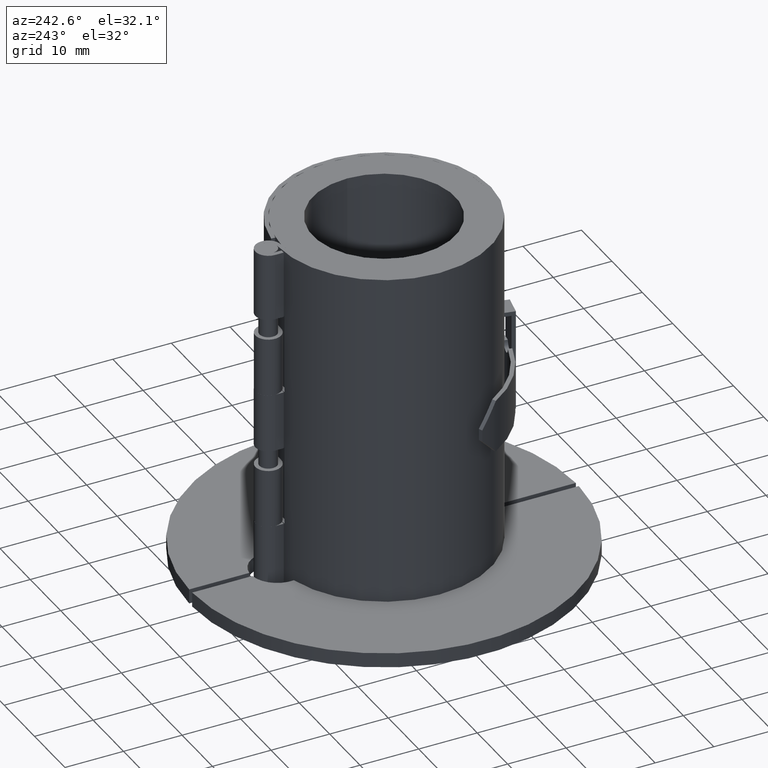
[diagram: clean part render]
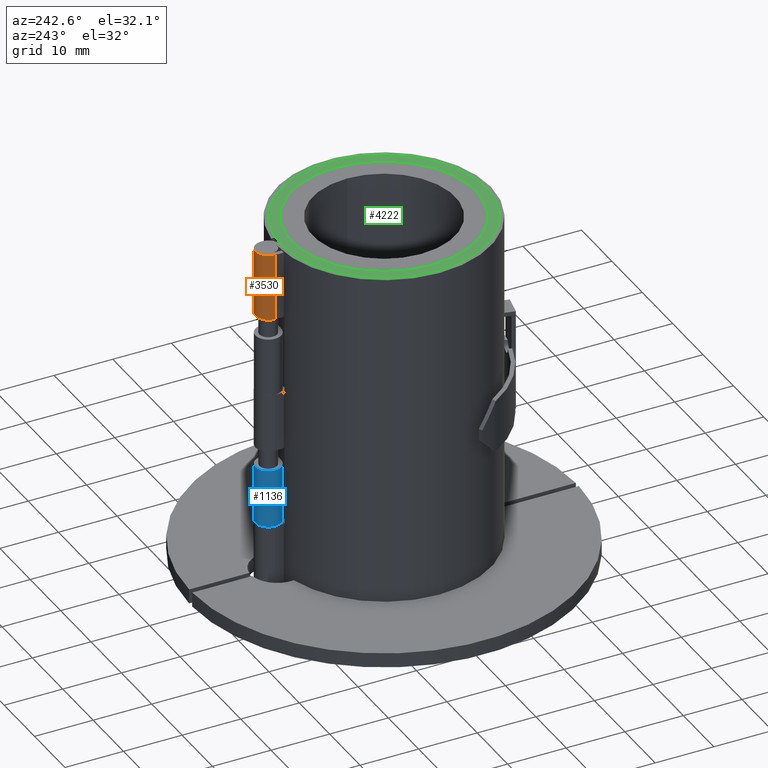
[diagram: same view with three faces highlighted in distinct colors, each labeled with its STEP entity id]
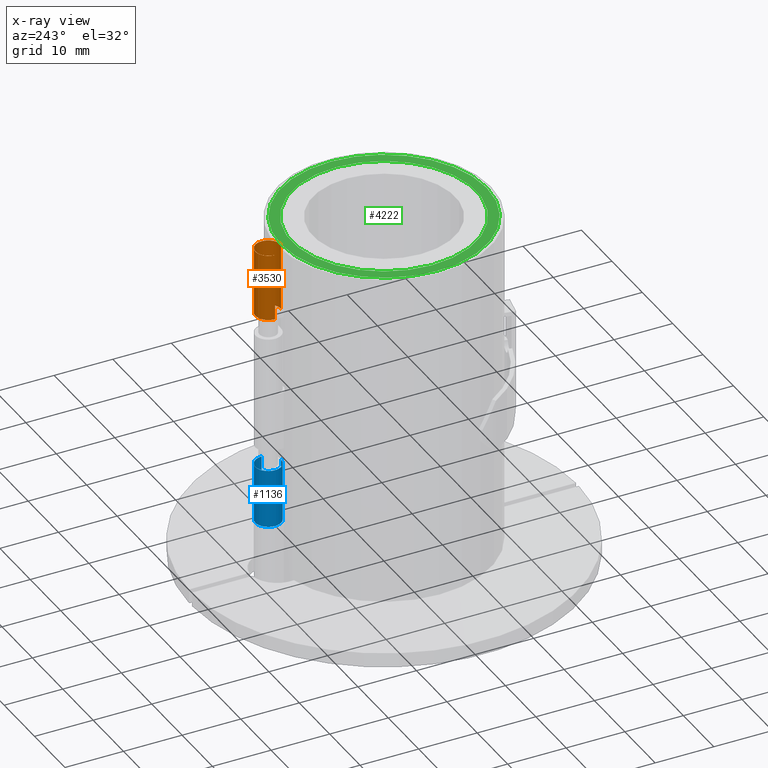
[diagram: x-ray of the same camera — body ghosted, the three highlighted faces saturated]
A machine part, auxiliary view with three faces highlighted in distinct colors.
The next image is the same camera in x-ray (body ghosted, the three faces saturated) — at least one of them is partly hidden behind the body in this view.
Their STEP definitions:

[orange] entity #3530 — the highlighted cylindrical surface (edge-blend (fillet) strip) has radius 2.2 mm, axis along (0, -0, -1).
#3063=CARTESIAN_POINT('',(9.229562E-014,17.549999999999947,48.500000000000121));
#3064=VERTEX_POINT('',#3063);
#3072=CARTESIAN_POINT('',(9.229562E-014,17.549999999999947,60.000000000000114));
#3073=VERTEX_POINT('',#3072);
#3074=CARTESIAN_POINT('',(9.229562E-014,17.549999999999947,48.500000000000114));
#3075=DIRECTION('',(0.0,0.0,1.0));
#3076=VECTOR('',#3075,11.5);
#3077=LINE('',#3074,#3076);
#3078=EDGE_CURVE('',#3064,#3073,#3077,.T.);
#3335=CARTESIAN_POINT('',(-2.199999999999906,19.74999999999995,48.500000000000121));
#3336=VERTEX_POINT('',#3335);
#3343=CARTESIAN_POINT('',(9.432732E-014,19.74999999999995,48.500000000000121));
#3344=DIRECTION('',(0.0,0.0,1.0));
#3345=DIRECTION('',(-1.0,0.0,0.0));
#3346=AXIS2_PLACEMENT_3D('',#3343,#3344,#3345);
#3347=CIRCLE('',#3346,2.200000000000005);
#3348=EDGE_CURVE('',#3064,#3336,#3347,.T.);
#3506=CARTESIAN_POINT('',(9.432732E-014,19.74999999999995,30.000000000000114));
#3507=DIRECTION('',(8.281969E-032,-6.409495E-031,-1.0));
#3508=DIRECTION('',(-1.0,0.0,0.0));
#3509=AXIS2_PLACEMENT_3D('',#3506,#3507,#3508);
#3510=CYLINDRICAL_SURFACE('',#3509,2.200000000000005);
#3511=ORIENTED_EDGE('',*,*,#3348,.T.);
#3512=CARTESIAN_POINT('',(-2.199999999999908,19.74999999999995,60.000000000000114));
#3513=VERTEX_POINT('',#3512);
#3514=CARTESIAN_POINT('',(-2.199999999999908,19.74999999999995,48.500000000000121));
#3515=DIRECTION('',(0.0,0.0,1.0));
#3516=VECTOR('',#3515,11.499999999999993);
#3517=LINE('',#3514,#3516);
#3518=EDGE_CURVE('',#3336,#3513,#3517,.T.);
#3519=ORIENTED_EDGE('',*,*,#3518,.T.);
#3520=CARTESIAN_POINT('',(9.432732E-014,19.74999999999995,60.000000000000114));
#3521=DIRECTION('',(0.0,0.0,-1.0));
#3522=DIRECTION('',(-1.0,0.0,0.0));
#3523=AXIS2_PLACEMENT_3D('',#3520,#3521,#3522);
#3524=CIRCLE('',#3523,2.200000000000002);
#3525=EDGE_CURVE('',#3513,#3073,#3524,.T.);
#3526=ORIENTED_EDGE('',*,*,#3525,.T.);
#3527=ORIENTED_EDGE('',*,*,#3078,.F.);
#3528=EDGE_LOOP('',(#3511,#3519,#3526,#3527));
#3529=FACE_OUTER_BOUND('',#3528,.T.);
#3530=ADVANCED_FACE('',(#3529),#3510,.T.);

[blue] entity #1136 — the highlighted cylindrical surface (edge-blend (fillet) strip) has radius 2.2 mm, axis along (0, 0, 1).
#611=CARTESIAN_POINT('',(-4.325174E-034,17.549999999999997,21.499999999999993));
#612=VERTEX_POINT('',#611);
#662=CARTESIAN_POINT('',(2.2,19.75,21.499999999999993));
#663=VERTEX_POINT('',#662);
#670=CARTESIAN_POINT('',(-1.665335E-015,19.75,21.499999999999993));
#671=DIRECTION('',(0.0,0.0,-1.0));
#672=DIRECTION('',(1.0,0.0,0.0));
#673=AXIS2_PLACEMENT_3D('',#670,#671,#672);
#674=CIRCLE('',#673,2.200000000000005);
#675=EDGE_CURVE('',#612,#663,#674,.T.);
#854=CARTESIAN_POINT('',(-9.413613E-034,17.549999999999997,11.499999999999996));
#855=VERTEX_POINT('',#854);
#863=CARTESIAN_POINT('',(2.2,19.75,11.499999999999996));
#864=VERTEX_POINT('',#863);
#865=CARTESIAN_POINT('',(-1.665335E-015,19.75,11.5));
#866=DIRECTION('',(0.0,0.0,1.0));
#867=DIRECTION('',(1.0,0.0,0.0));
#868=AXIS2_PLACEMENT_3D('',#865,#866,#867);
#869=CIRCLE('',#868,2.200000000000005);
#870=EDGE_CURVE('',#864,#855,#869,.T.);
#932=CARTESIAN_POINT('',(-4.325174E-034,17.549999999999997,21.499999999999993));
#933=DIRECTION('',(0.0,0.0,-1.0));
#934=VECTOR('',#933,9.999999999999996);
#935=LINE('',#932,#934);
#936=EDGE_CURVE('',#612,#855,#935,.T.);
#1120=CARTESIAN_POINT('',(-1.665335E-015,19.75,30.0));
#1121=DIRECTION('',(0.0,0.0,1.0));
#1122=DIRECTION('',(1.0,0.0,0.0));
#1123=AXIS2_PLACEMENT_3D('',#1120,#1121,#1122);
#1124=CYLINDRICAL_SURFACE('',#1123,2.200000000000005);
#1125=ORIENTED_EDGE('',*,*,#675,.T.);
#1126=CARTESIAN_POINT('',(2.2,19.75,21.499999999999993));
#1127=DIRECTION('',(0.0,0.0,-1.0));
#1128=VECTOR('',#1127,9.999999999999996);
#1129=LINE('',#1126,#1128);
#1130=EDGE_CURVE('',#663,#864,#1129,.T.);
#1131=ORIENTED_EDGE('',*,*,#1130,.T.);
#1132=ORIENTED_EDGE('',*,*,#870,.T.);
#1133=ORIENTED_EDGE('',*,*,#936,.F.);
#1134=EDGE_LOOP('',(#1125,#1131,#1132,#1133));
#1135=FACE_OUTER_BOUND('',#1134,.T.);
#1136=ADVANCED_FACE('',(#1135),#1124,.T.);

[green] entity #4222 — the highlighted planar face has unit normal (0, 0, 1).
#4148=CARTESIAN_POINT('',(15.749999999999986,-5.949224E-015,60.0));
#4149=VERTEX_POINT('',#4148);
#4150=CARTESIAN_POINT('',(-1.453844E-014,-5.255141E-015,60.0));
#4151=DIRECTION('',(0.0,0.0,-1.0));
#4152=DIRECTION('',(-1.0,0.0,0.0));
#4153=AXIS2_PLACEMENT_3D('',#4150,#4151,#4152);
#4154=CIRCLE('',#4153,15.750000000000002);
#4155=EDGE_CURVE('',#4149,#4149,#4154,.T.);
#4188=CARTESIAN_POINT('',(17.549999999999986,-6.028548E-015,60.0));
#4189=VERTEX_POINT('',#4188);
#4190=CARTESIAN_POINT('',(-1.453844E-014,-5.255141E-015,60.0));
#4191=DIRECTION('',(0.0,0.0,1.0));
#4192=DIRECTION('',(-1.0,0.0,0.0));
#4193=AXIS2_PLACEMENT_3D('',#4190,#4191,#4192);
#4194=CIRCLE('',#4193,17.550000000000001);
#4195=EDGE_CURVE('',#4189,#4189,#4194,.T.);
#4211=CARTESIAN_POINT('',(-1.556101E-014,-5.676878E-015,60.0));
#4212=DIRECTION('',(0.0,0.0,1.0));
#4213=DIRECTION('',(1.0,0.0,0.0));
#4214=AXIS2_PLACEMENT_3D('',#4211,#4212,#4213);
#4215=PLANE('',#4214);
#4216=ORIENTED_EDGE('',*,*,#4195,.T.);
#4217=EDGE_LOOP('',(#4216));
#4218=FACE_OUTER_BOUND('',#4217,.T.);
#4219=ORIENTED_EDGE('',*,*,#4155,.T.);
#4220=EDGE_LOOP('',(#4219));
#4221=FACE_BOUND('',#4220,.T.);
#4222=ADVANCED_FACE('',(#4218,#4221),#4215,.T.);